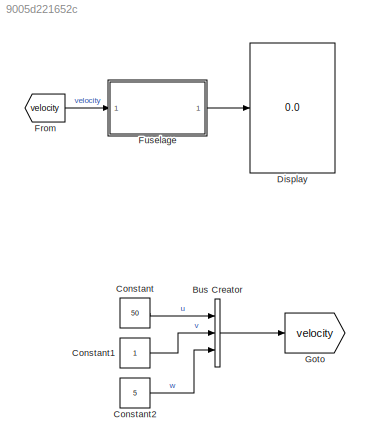
MODEL slx_9005d221652c
KIND model
CONFIG AbsTol = auto
CONFIG EnableMultiTasking = off
CONFIG FixedStep = auto
CONFIG MaxStep = auto
CONFIG MinStep = auto
CONFIG RelTol = 1e-3
CONFIG SampleTimeConstraint = Unconstrained
CONFIG SolverName = VariableStepAuto
CONFIG StartTime = 0.0
CONFIG StopTime = 10.0
BLOCK [BusCreator] Bus Creator
  DisplayOption = bar
  InheritFromInputs = on
  Inputs = 3
  Ports = [3, 1]
BLOCK [Constant] Constant
  Value = 50
BLOCK [Constant] Constant1
BLOCK [Constant] Constant2
  Value = 5
BLOCK [Display] Display
  Decimation = 1
  Ports = [1]
BLOCK [From] From
  GotoTag = velocity
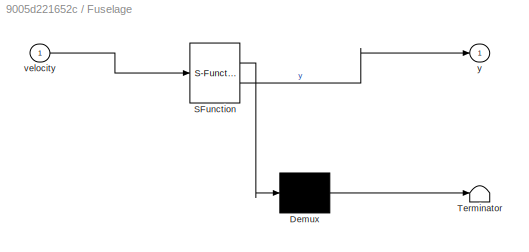
BLOCK [SubSystem] Fuselage
  ErrorFcn = Stateflow.Translate.translate
  PermitHierarchicalResolution = ExplicitOnly
  Ports = [1, 1]
  RequestExecContextInheritance = off
  SFBlockType = MATLAB Function
  TreatAsAtomicUnit = on
BLOCK [Demux] Fuselage/ Demux 
  Outputs = 1
  Ports = [1, 1]
BLOCK [S-Function] Fuselage/ SFunction 
  EnableBusSupport = on
  FunctionName = sf_sfun
  PortCounts = [1 2]
  Ports = [1, 2]
  SFcnIsStateOwnerBlock = off
  SFunctionDeploymentMode = off
  Tag = Stateflow S-Function 2
BLOCK [Terminator] Fuselage/ Terminator 
BLOCK [Inport] Fuselage/velocity
BLOCK [Outport] Fuselage/y
BLOCK [Goto] Goto
  GotoTag = velocity
LINE Bus Creator:1 -> Goto:1
LINE Constant1:1 -> Bus Creator:2
LINE Constant2:1 -> Bus Creator:3
LINE Constant:1 -> Bus Creator:1
LINE From:1 -> Fuselage:1
LINE Fuselage:1 -> Display:1
CHART Fuselage states=1 transitions=1
  STATE_LABEL 'eML_blk_kernel()'
  STATE_LABEL 'SCRIPT:\nfunction y = fcn(velocity)\n%velocity: u,v,w\nu_F = velocity(1);\nv_F = velocity(2);\nw_F = velocity(3);\nrho = 1.2133;\nR = 5.49;\nA = pi*R^2;\n\n\nif u_F == 0\n    alpha_F = pi/2*sign(w_F);\nelseif u_F > 0\n    alpha_F = atan(w_F/u_F);\nelse\n    alpha_F = pi + atan(w_F/u_F);\nend\n\nif u_F == 0\n    beta_F = pi/2*sign(v_F);\nelseif u_F > 0\n    beta_F = atan(v_F/u_F);\nelse\n    beta_F = pi + atan(v_F/u_F);\ne...<+531ch>'
CHART  states=0 transitions=0
